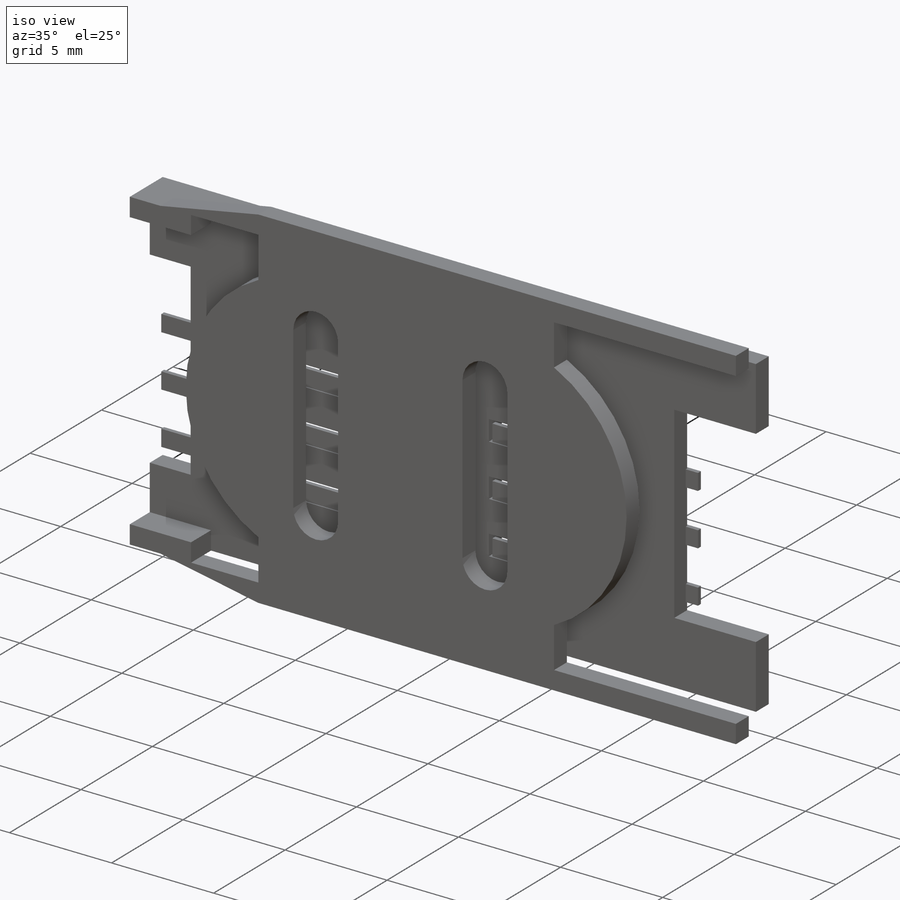
[diagram: iso view]
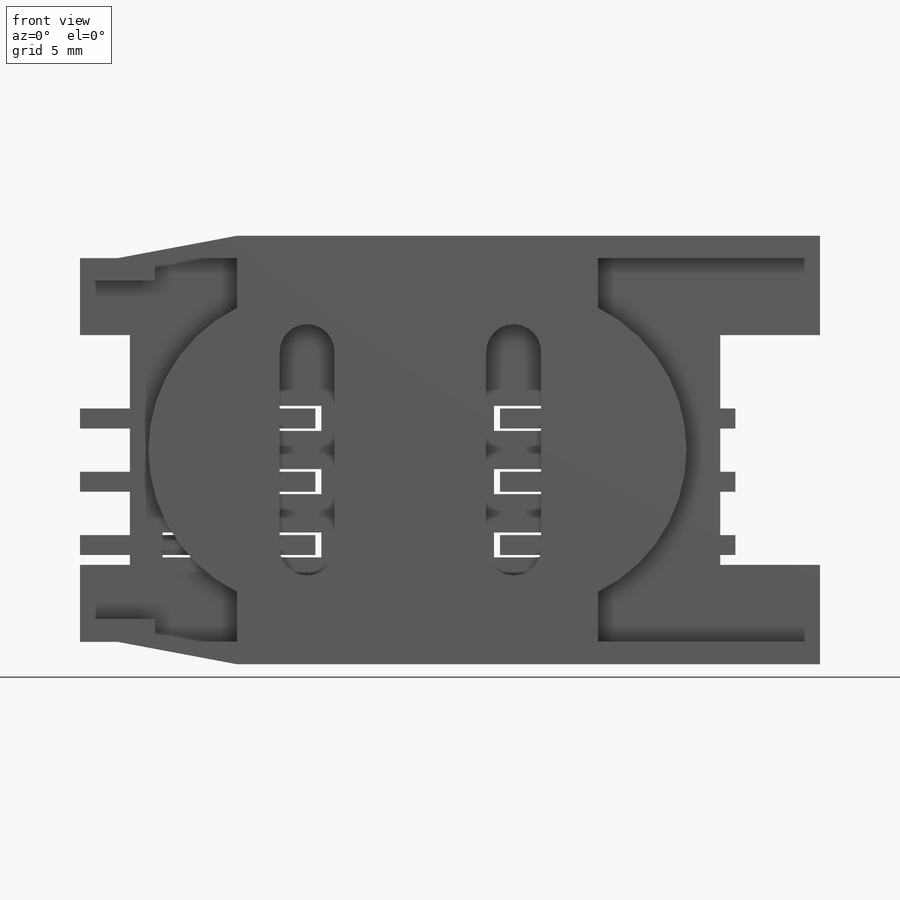
[diagram: front view]
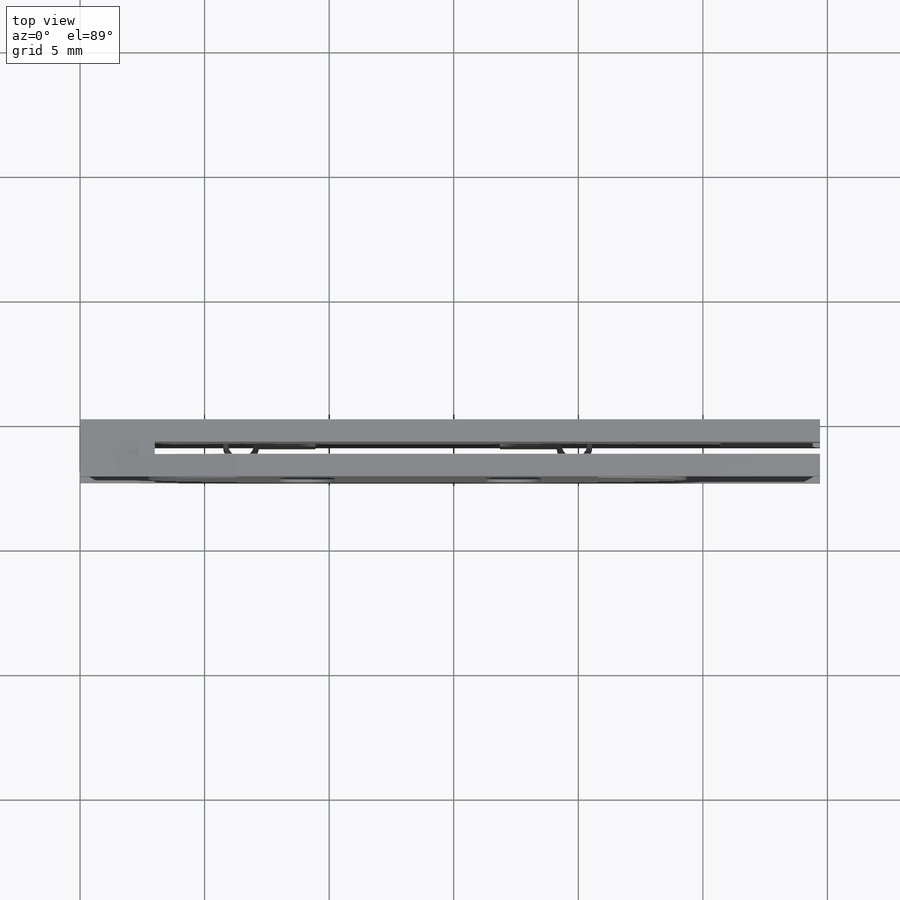
[diagram: top view]
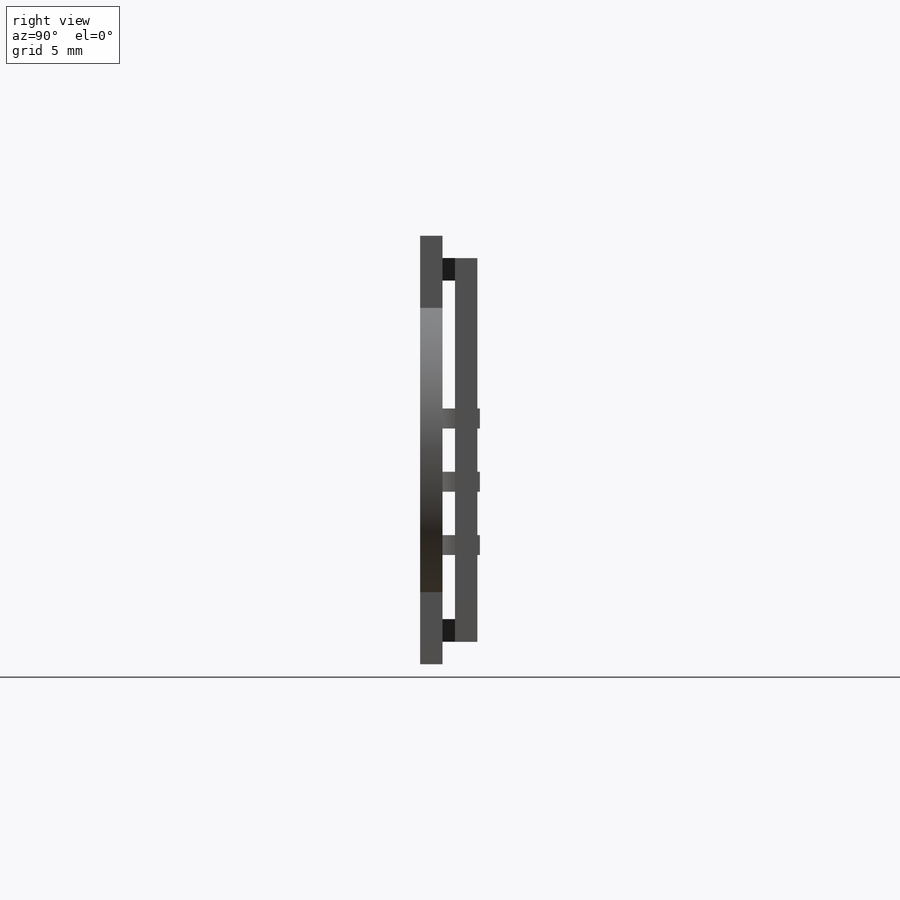
[diagram: right view]
SOLIDWORKS PART (.sldprt)
format: sldprt  version: not decoded by parser v0  size: 833,024 bytes
history: native  units: mm
features: sketch x5, extrude x3, plane x2, material x1, cut_extrude x1, pattern_linear x1 (+13 scaffold rows collapsed)
feature tree (26):
  scaffold x13  (default folders/planes/origin — collapsed)
  material  "Material <not specified>"
  sketch  "Sketch1"  dims[c1.D1=29.7mm c1.D2=17.2mm c1.D3=2.0mm c1.D4=9.22mm c1.D5=9.22mm c1.D6=4.0mm c1.D7=~9.033817mm c1.D8=5.0mm c1.D9=0.9mm c2.D1=5.0mm c2.D2=0.4mm c2.D8=29.7mm c2.D10=15.4mm c2.D11=24.7mm c3.D1=29.7mm c3.D2=15.4mm c3.D3=9.22mm c3.D4=9.22mm c3.D5=2.0mm c3.D6=4.0mm c3.D7=1.0mm c3.D8=1.0mm c3.D9=0.8mm c3.D10=3.0]
  extrude  "Boss-Extrude1"  Depth=0.9mm
  plane  "Plane1"  Offset=2.3mm
  sketch  "Sketch4"  dims[D1=3.0mm D2=0.9mm]
  extrude  "Boss-Extrude3"  [1 undecoded]
  sketch  "Sketch5"  dims[D2=6.35mm D4=6.35mm D1=17.2mm D3=2.794mm D5=2.794mm]
  extrude  "Boss-Extrude4"  Depth=0.9mm
  sketch  "Sketch6"
  cut_extrude  "Cut-Extrude1"  [1 undecoded]
  plane  "Plane2"  Offset=0.4953mm
  sketch  "Sketch7"  dims[c1.D1=0.62mm c1.D2=5.842mm c1.D3=2.3622mm c2.D1=0.8mm c2.D5=0.2mm c2.D6=1.0mm c2.D7=5.0mm]
  pattern_linear  "LPattern1"  Count1=3 Count2=1 Spacing1=2.54mm Spacing2=2.54mm
decode coverage: 7 of 10 modeling features carry decoded parameters
note: ~ marks probable driven/reference dimensions
note: 2 parameter values undecoded
note: suppression state not decoded; provenance and decode notes live in map.json
